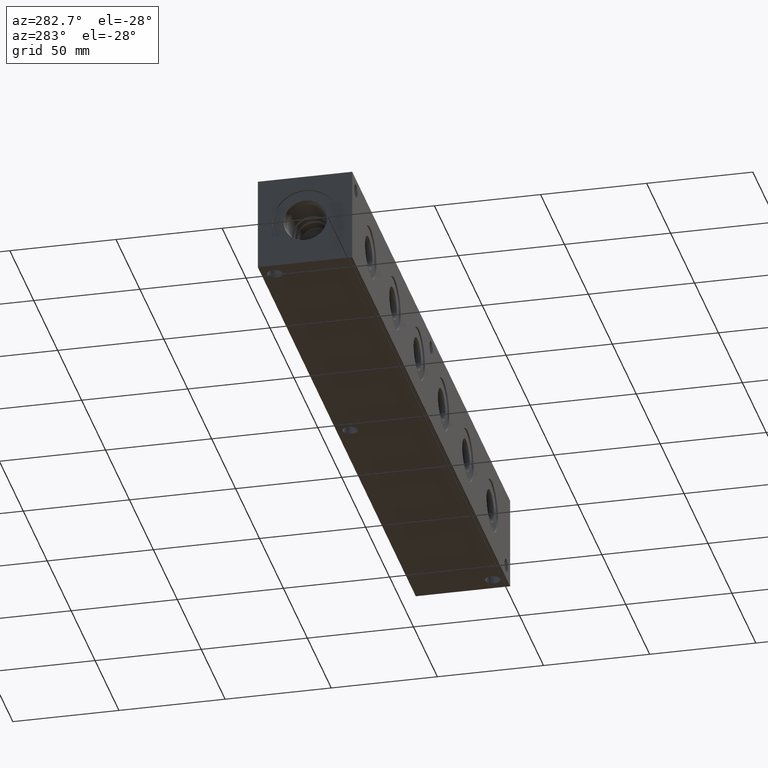
[diagram: clean part render]
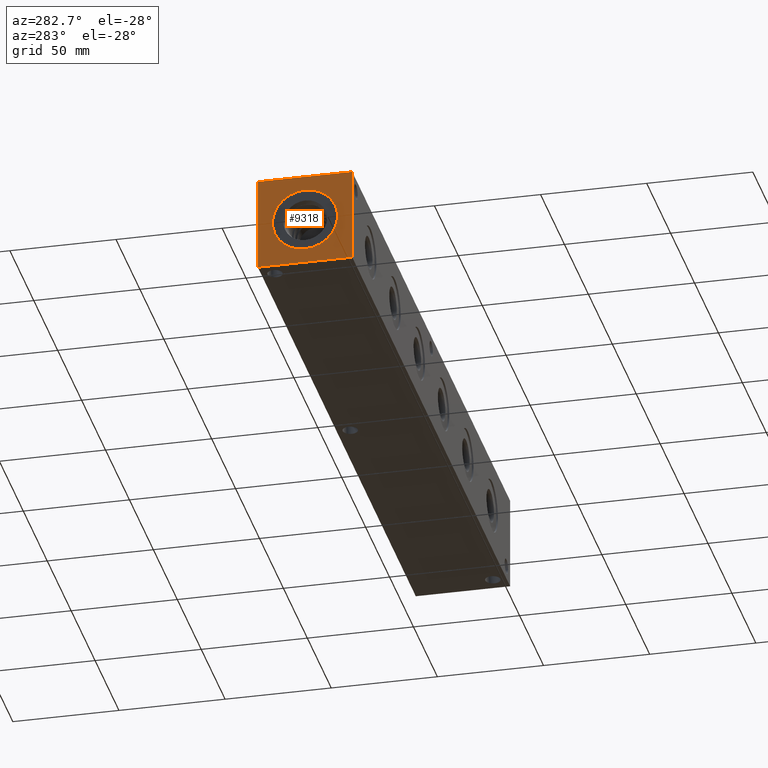
[diagram: same view with one face highlighted and labeled with its STEP entity id]
A machine part, auxiliary view. The second image highlights one B-rep face of the part: STEP entity #9318.
In plain terms, the highlighted planar face has unit normal (-1, 0, 0).
Its self-contained STEP definition (entity closure, byte-faithful):
#416=CIRCLE('',#9956,15.3162);
#417=CIRCLE('',#9957,15.3162);
#492=FACE_BOUND('',#1949,.T.);
#1401=FACE_OUTER_BOUND('',#1948,.T.);
#1948=EDGE_LOOP('',(#8254,#8255,#8256,#8257));
#1949=EDGE_LOOP('',(#8258,#8259));
#2215=LINE('',#14556,#2959);
#2707=LINE('',#16574,#3451);
#2708=LINE('',#16575,#3452);
#2709=LINE('',#16576,#3453);
#2959=VECTOR('',#10324,10.);
#3451=VECTOR('',#11980,10.);
#3452=VECTOR('',#11981,10.);
#3453=VECTOR('',#11982,10.);
#3781=VERTEX_POINT('',#14549);
#3784=VERTEX_POINT('',#14554);
#4337=VERTEX_POINT('',#16543);
#4338=VERTEX_POINT('',#16544);
#4347=VERTEX_POINT('',#16572);
#4348=VERTEX_POINT('',#16573);
#4837=EDGE_CURVE('',#3784,#3781,#2215,.T.);
#5647=EDGE_CURVE('',#4337,#4338,#416,.T.);
#5648=EDGE_CURVE('',#4338,#4337,#417,.T.);
#5661=EDGE_CURVE('',#4347,#4348,#2707,.T.);
#5662=EDGE_CURVE('',#4348,#3781,#2708,.T.);
#5663=EDGE_CURVE('',#4347,#3784,#2709,.T.);
#8254=ORIENTED_EDGE('',*,*,#5661,.T.);
#8255=ORIENTED_EDGE('',*,*,#5662,.T.);
#8256=ORIENTED_EDGE('',*,*,#4837,.F.);
#8257=ORIENTED_EDGE('',*,*,#5663,.F.);
#8258=ORIENTED_EDGE('',*,*,#5647,.T.);
#8259=ORIENTED_EDGE('',*,*,#5648,.T.);
#8525=PLANE('',#9970);
#9318=ADVANCED_FACE('',(#1401,#492),#8525,.T.);
#9956=AXIS2_PLACEMENT_3D('',#16545,#11946,#11947);
#9957=AXIS2_PLACEMENT_3D('',#16546,#11948,#11949);
#9970=AXIS2_PLACEMENT_3D('',#16571,#11978,#11979);
#10324=DIRECTION('',(0.,-1.,0.));
#11946=DIRECTION('center_axis',(1.,0.,0.));
#11947=DIRECTION('ref_axis',(0.,0.,1.));
#11948=DIRECTION('center_axis',(1.,0.,0.));
#11949=DIRECTION('ref_axis',(0.,0.,1.));
#11978=DIRECTION('center_axis',(-1.,0.,0.));
#11979=DIRECTION('ref_axis',(0.,-1.,0.));
#11980=DIRECTION('',(0.,-1.,0.));
#11981=DIRECTION('',(0.,0.,1.));
#11982=DIRECTION('',(0.,0.,1.));
#14549=CARTESIAN_POINT('',(0.,0.,44.45));
#14554=CARTESIAN_POINT('',(0.,44.45,44.45));
#14556=CARTESIAN_POINT('',(0.,44.45,44.45));
#16543=CARTESIAN_POINT('',(0.,22.225,37.5412));
#16544=CARTESIAN_POINT('',(0.,22.225,6.9088));
#16545=CARTESIAN_POINT('Origin',(0.,22.225,22.225));
#16546=CARTESIAN_POINT('Origin',(0.,22.225,22.225));
#16571=CARTESIAN_POINT('Origin',(0.,44.45,0.));
#16572=CARTESIAN_POINT('',(0.,44.45,0.));
#16573=CARTESIAN_POINT('',(0.,0.,0.));
#16574=CARTESIAN_POINT('',(0.,44.45,0.));
#16575=CARTESIAN_POINT('',(0.,0.,0.));
#16576=CARTESIAN_POINT('',(0.,44.45,0.));